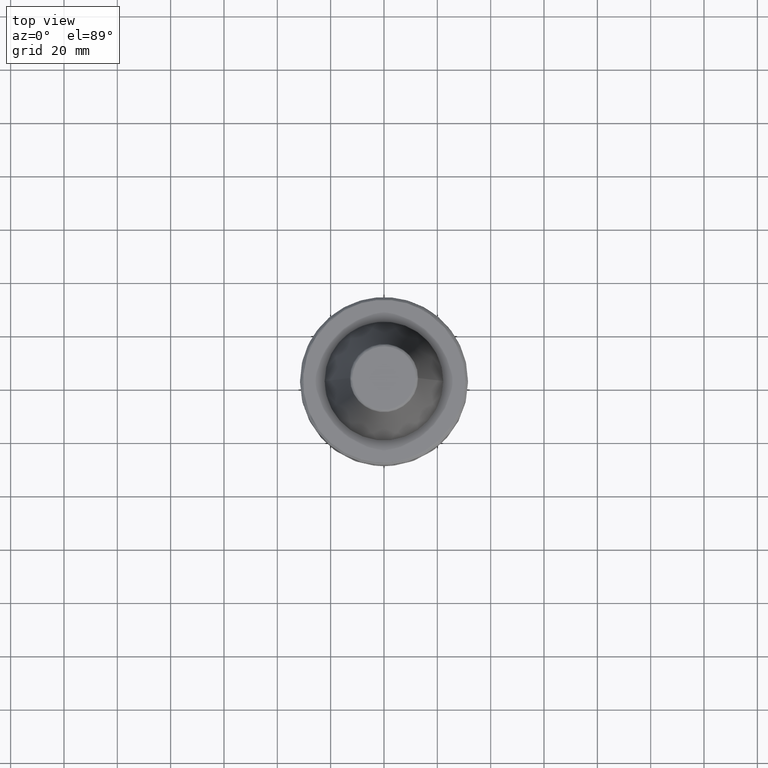
[diagram: clean part render]
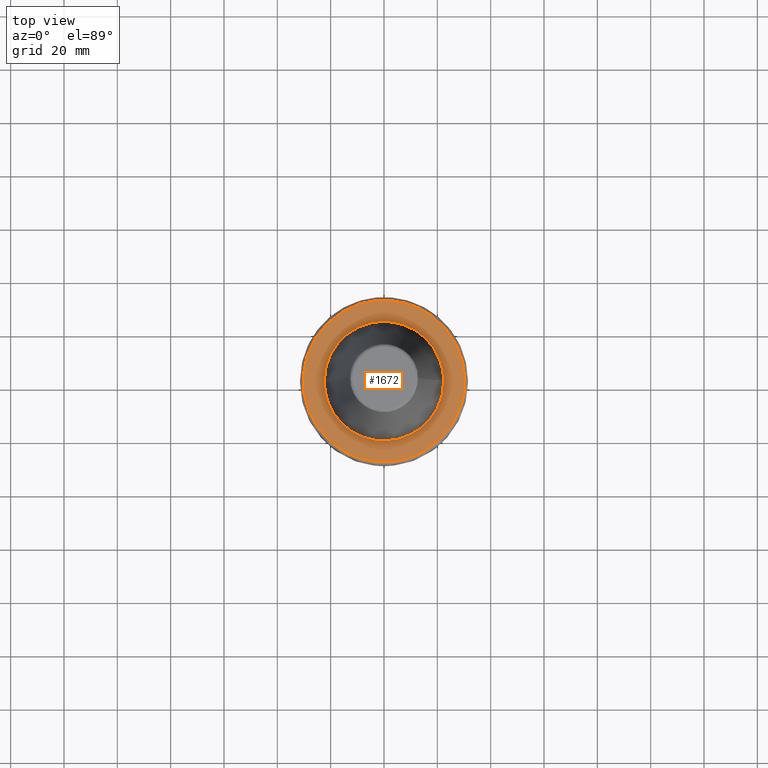
[diagram: same view with one face highlighted and labeled with its STEP entity id]
A machine part, top view. The second image highlights one B-rep face of the part: STEP entity #1672.
In plain terms, the highlighted planar face has unit normal (0, 0, 1).
Its self-contained STEP definition (entity closure, byte-faithful):
#1 = CARTESIAN_POINT ( 'NONE',  ( -6.542405141313800200, 21.44498038501395200, -2.000000000000002700 ) ) ;
#6 = CARTESIAN_POINT ( 'NONE',  ( -7.570037086841433700, 21.09461488815497900, -2.000000000000004000 ) ) ;
#9 = CARTESIAN_POINT ( 'NONE',  ( -8.287526769644985700, 20.81054813477617000, -2.000000000000004000 ) ) ;
#11 = CARTESIAN_POINT ( 'NONE',  ( -8.333249188849523000, 20.79228629974428300, -2.000000000000004000 ) ) ;
#12 = CARTESIAN_POINT ( 'NONE',  ( -8.420970184741060300, 20.75691791007713500, -2.000000000000004000 ) ) ;
#16 = CARTESIAN_POINT ( 'NONE',  ( -8.552344979806328200, 20.70346857996340300, -2.000000000000003600 ) ) ;
#19 = CARTESIAN_POINT ( 'NONE',  ( -8.857439276887731700, 20.57597625707371200, -2.000000000000003100 ) ) ;
#20 = B_SPLINE_CURVE_WITH_KNOTS ( 'NONE', 3,
 ( #2577, #2570, #2538, #2370, #2877, #2780, #2628, #2396, #2759, #2756, #3109, #2662, #2903, #2749, #2746, #2741, #2516, #2430, #2250, #3092, #2689, #2684, #2455, #2894, #2930, #2791, #2320, #2327, #2262, #2290, #2656, #2434, #2905, #2429, #2674, #3078, #2004, #2846, #2843, #2634, #2008, #2013, #2001, #1998, #1993, #1988, #1984, #1977, #1973, #1969, #1967, #1965, #2165, #2176, #2157, #2170, #2172, #3095, #3104, #2390, #2260, #2256, #2203, #2268, #2273, #2237, #2060, #2153, #2266, #2143, #2161, #2070, #2154, #2169, #2148, #2715, #3116, #2490, #3008, #2047, #1916, #3298, #2283, #3303, #2140, #3002, #2200, #2186, #3387, #3169, #2101, #2185, #2031, #3049, #3017, #2054, #3075, #2022, #1940, #2214, #2045, #2225 ),
 .UNSPECIFIED., .F., .F.,
 ( 4, 1, 1, 1, 1, 2, 2, 1, 1, 1, 1, 2, 2, 1, 1, 1, 2, 2, 2, 1, 1, 1, 2, 2, 1, 1, 1, 1, 2, 2, 1, 1, 1, 1, 2, 2, 2, 1, 1, 1, 1, 2, 2, 1, 1, 1, 1, 2, 2, 1, 1, 1, 2, 2, 2, 1, 1, 1, 2, 2, 1, 1, 1, 1, 2, 2, 1, 1, 1, 1, 2, 2, 4 ),
 ( 0.0000000000000000000, 0.03125000000000343500, 0.04687500000000514900, 0.05468750000000598100, 0.05859375000000639800, 0.06054687500000654300, 0.06250000000000668900, 0.09375000000000850700, 0.1093750000000094100, 0.1171875000000099200, 0.1210937500000102100, 0.1230468750000103100, 0.1250000000000103800, 0.1562500000000105200, 0.1718750000000106300, 0.1796875000000106900, 0.1835937500000107400, 0.1875000000000108000, 0.2500000000000113200, 0.2812500000000116600, 0.2968750000000118200, 0.3046875000000118800, 0.3085937500000118800, 0.3125000000000118800, 0.3437500000000122700, 0.3593750000000124300, 0.3671875000000124900, 0.3710937500000125500, 0.3730468750000125500, 0.3750000000000124900, 0.4062500000000127700, 0.4218750000000129300, 0.4296875000000130500, 0.4335937500000131000, 0.4355468750000131000, 0.4375000000000131600, 0.5000000000000141000, 0.5312500000000145400, 0.5468750000000147700, 0.5546875000000148800, 0.5585937500000149900, 0.5605468750000149900, 0.5625000000000149900, 0.5937500000000154300, 0.6093750000000155400, 0.6171875000000156500, 0.6210937500000157700, 0.6230468750000157700, 0.6250000000000157700, 0.6562500000000158800, 0.6718750000000158800, 0.6796875000000159900, 0.6835937500000159900, 0.6875000000000159900, 0.7500000000000154300, 0.7812500000000152100, 0.7968750000000152100, 0.8046875000000151000, 0.8085937500000149900, 0.8125000000000147700, 0.8437500000000135400, 0.8593750000000131000, 0.8671875000000128800, 0.8710937500000126600, 0.8730468750000125500, 0.8750000000000124300, 0.9062500000000094400, 0.9218750000000079900, 0.9296875000000072200, 0.9335937500000068800, 0.9355468750000067700, 0.9375000000000066600, 1.000000000000000000 ),
 .UNSPECIFIED. ) ;
#21 = CARTESIAN_POINT ( 'NONE',  ( -9.461840305433570500, 20.30988273413042900, -2.000000000000003100 ) ) ;
#25 = CARTESIAN_POINT ( 'NONE',  ( -10.64749210005746200, 19.73326017958817500, -2.000000000000002700 ) ) ;
#28 = CARTESIAN_POINT ( 'NONE',  ( -11.62407890264743500, 19.16283711799939800, -2.000000000000003600 ) ) ;
#32 = CARTESIAN_POINT ( 'NONE',  ( -12.33667592247465800, 18.69693224296009900, -2.000000000000003100 ) ) ;
#38 = CARTESIAN_POINT ( 'NONE',  ( -12.41893087788559300, 18.64241366107998100, -2.000000000000003100 ) ) ;
#44 = CARTESIAN_POINT ( 'NONE',  ( -12.57918310161072700, 18.53468170720292500, -2.000000000000002700 ) ) ;
#46 = CARTESIAN_POINT ( 'NONE',  ( -12.81838125886517000, 18.37163761272810800, -2.000000000000003100 ) ) ;
#51 = CARTESIAN_POINT ( 'NONE',  ( -13.36824904412599800, 17.98107824667216500, -2.000000000000003600 ) ) ;
#54 = CARTESIAN_POINT ( 'NONE',  ( -14.43493962131616300, 17.15946693210156900, -2.000000000000003100 ) ) ;
#56 = CARTESIAN_POINT ( 'NONE',  ( -15.29259727033948500, 16.38581280682610600, -2.000000000000003600 ) ) ;
#58 = CARTESIAN_POINT ( 'NONE',  ( -16.93238115505703000, 14.74595008208380700, -2.000000000000003600 ) ) ;
#59 = EDGE_CURVE ( 'NONE', #2916, #3258, #759, .T. ) ;
#60 = CARTESIAN_POINT ( 'NONE',  ( -17.90272195339947800, 13.55154730278627200, -2.000000000000004000 ) ) ;
#66 = CARTESIAN_POINT ( 'NONE',  ( -18.80157304491644200, 12.17662042414224800, -2.000000000000003600 ) ) ;
#68 = CARTESIAN_POINT ( 'NONE',  ( -18.85174391189489300, 12.09879233629797000, -2.000000000000003100 ) ) ;
#72 = CARTESIAN_POINT ( 'NONE',  ( -18.95319761216203200, 11.93926672244238000, -2.000000000000003600 ) ) ;
#75 = CARTESIAN_POINT ( 'NONE',  ( -19.10378740223278600, 11.69915882733261900, -2.000000000000003100 ) ) ;
#78 = CARTESIAN_POINT ( 'NONE',  ( -19.44402825675482700, 11.13317075179192800, -2.000000000000003600 ) ) ;
#81 = CARTESIAN_POINT ( 'NONE',  ( -20.07996867656007100, 9.978249319572150000, -2.000000000000003100 ) ) ;
#83 = CARTESIAN_POINT ( 'NONE',  ( -20.54870396912657100, 8.948981895717979600, -2.000000000000003600 ) ) ;
#84 = EDGE_CURVE ( 'NONE', #355, #3038, #20, .T. ) ;
#88 = CARTESIAN_POINT ( 'NONE',  ( -20.84466756721542100, 8.201342719090201100, -2.000000000000002700 ) ) ;
#90 = CARTESIAN_POINT ( 'NONE',  ( -20.86055755905033800, 8.160831267535956000, -2.000000000000003600 ) ) ;
#92 = CARTESIAN_POINT ( 'NONE',  ( -20.89346074650129700, 8.076228125964370000, -2.000000000000003100 ) ) ;
#96 = CARTESIAN_POINT ( 'NONE',  ( -20.94241909987678300, 7.949210498685419100, -2.000000000000003600 ) ) ;
#99 = CARTESIAN_POINT ( 'NONE',  ( -21.05388026314624400, 7.652045630583450600, -2.000000000000003100 ) ) ;
#101 = EDGE_LOOP ( 'NONE', ( #2121, #2316 ) ) ;
#102 = CARTESIAN_POINT ( 'NONE',  ( -21.26570261125855800, 7.054554276575252900, -2.000000000000003100 ) ) ;
#103 = CARTESIAN_POINT ( 'NONE',  ( -21.64494739377664300, 5.846925097341760100, -2.000000000000003600 ) ) ;
#106 = CARTESIAN_POINT ( 'NONE',  ( -21.89390021243810800, 4.790134707340890900, -2.000000000000003100 ) ) ;
#108 = CARTESIAN_POINT ( 'NONE',  ( -22.03016962878418300, 4.053654801116148400, -2.000000000000003600 ) ) ;
#112 = CARTESIAN_POINT ( 'NONE',  ( -22.03380064768137800, 4.033863417742547400, -2.000000000000004000 ) ) ;
#115 = CARTESIAN_POINT ( 'NONE',  ( 13.55154730279607000, 17.90272195338969400, -2.000000000000004000 ) ) ;
#117 = CARTESIAN_POINT ( 'NONE',  ( -22.04146974406501200, 3.991746215249739800, -2.000000000000004000 ) ) ;
#119 = CARTESIAN_POINT ( 'NONE',  ( -8.750000000000000000, -29.04493313364892500, -2.000000000000001800 ) ) ;
#120 = CARTESIAN_POINT ( 'NONE',  ( -22.05288208987399300, 3.928562165307222000, -2.000000000000003100 ) ) ;
#125 = CARTESIAN_POINT ( 'NONE',  ( -22.07887180539631400, 3.781074992018196300, -2.000000000000003100 ) ) ;
#130 = CARTESIAN_POINT ( 'NONE',  ( -22.12829487097975100, 3.485869751747544800, -2.000000000000003600 ) ) ;
#132 = B_SPLINE_CURVE_WITH_KNOTS ( 'NONE', 3,
 ( #1498, #1507, #1511, #1491, #1489, #1481, #1475, #1474, #1472, #1469, #1463, #1460, #1456, #1454, #1451, #1445, #1443, #1440, #1437, #1435, #1433, #1422, #1421, #1417, #1415, #1410, #1409, #1401, #1396, #1394, #1390, #1388, #1383, #1381, #1376, #1375, #1371, #1366, #1361, #1354, #1349, #1345, #1344, #1340, #1338, #1332, #1331, #1327, #1321, #1316, #1314, #1309, #1304, #1299, #1298, #1292, #1290, #1289, #1286, #1285, #1281, #1278, #1273, #1269, #1267, #1264, #1260, #1256, #1254, #1248, #1244, #1242, #1238, #1235, #1231, #1228, #1226, #1222, #1219, #1215, #1211, #1205, #1204, #1199, #1195, #1192, #1190, #1188, #1185, #1181, #1177, #1175, #1173, #1171, #1166, #1159, #1158, #1155, #1152, #1148, #1147, #1145, #1137, #1136, #1128, #1125 ),
 .UNSPECIFIED., .F., .F.,
 ( 4, 1, 1, 1, 1, 1, 2, 2, 1, 1, 1, 1, 2, 2, 1, 1, 1, 2, 2, 2, 1, 1, 1, 2, 2, 1, 1, 1, 1, 2, 2, 1, 1, 1, 1, 1, 2, 2, 2, 1, 1, 1, 1, 1, 2, 2, 1, 1, 1, 1, 2, 2, 1, 1, 1, 2, 2, 2, 1, 1, 1, 2, 2, 1, 1, 1, 1, 2, 2, 1, 1, 1, 1, 1, 2, 2, 4 ),
 ( 0.0000000000000000000, 0.03124999999999830700, 0.04687499999999746700, 0.05468749999999703700, 0.05859374999999682900, 0.06054687499999673900, 0.06152343749999671800, 0.06249999999999668300, 0.09374999999999561500, 0.1093749999999950700, 0.1171874999999948100, 0.1210937499999947100, 0.1230468749999947000, 0.1249999999999946700, 0.1562499999999943100, 0.1718749999999941200, 0.1796874999999940000, 0.1835937499999940000, 0.1874999999999939800, 0.2499999999999936200, 0.2812499999999933900, 0.2968749999999932800, 0.3046874999999932800, 0.3085937499999932300, 0.3124999999999931700, 0.3437499999999934500, 0.3593749999999936200, 0.3671874999999937300, 0.3710937499999937800, 0.3730468749999937800, 0.3749999999999937800, 0.4062499999999942300, 0.4218749999999944500, 0.4296874999999946200, 0.4335937499999946700, 0.4355468749999946700, 0.4365234374999946700, 0.4374999999999946700, 0.4999999999999951200, 0.5312499999999953400, 0.5468749999999954500, 0.5546874999999954500, 0.5585937499999954500, 0.5605468749999954500, 0.5615234374999954500, 0.5624999999999953400, 0.5937499999999952300, 0.6093749999999952300, 0.6171874999999952300, 0.6210937499999952300, 0.6230468749999952300, 0.6249999999999952300, 0.6562499999999954500, 0.6718749999999955600, 0.6796874999999955600, 0.6835937499999955600, 0.6874999999999955600, 0.7499999999999964500, 0.7812499999999968900, 0.7968749999999970000, 0.8046874999999971100, 0.8085937499999971100, 0.8124999999999971100, 0.8437499999999980000, 0.8593749999999985600, 0.8671874999999987800, 0.8710937499999988900, 0.8730468749999990000, 0.8749999999999991100, 0.9062500000000001100, 0.9218750000000005600, 0.9296875000000007800, 0.9335937500000008900, 0.9355468750000008900, 0.9365234375000008900, 0.9375000000000007800, 1.000000000000000000 ),
 .UNSPECIFIED. ) ;
#134 = CARTESIAN_POINT ( 'NONE',  ( -22.21691554030177700, 2.894535696435848400, -2.000000000000003600 ) ) ;
#138 = CARTESIAN_POINT ( 'NONE',  ( -22.35325503156640500, 1.708173286730883000, -2.000000000000001800 ) ) ;
#191 = CARTESIAN_POINT ( 'NONE',  ( -22.40000000000000200, 2.743208830090071000E-015, -2.000000000000004000 ) ) ;
#196 = CARTESIAN_POINT ( 'NONE',  ( -4.165236834192944200, 22.00934566656719600, -2.000000000000002700 ) ) ;
#197 = CARTESIAN_POINT ( 'NONE',  ( 22.40000000000000200, 0.0000000000000000000, -2.000000000000004000 ) ) ;
#200 = CARTESIAN_POINT ( 'NONE',  ( -22.40000000000000200, 0.6849581371296453700, -2.000000000000003100 ) ) ;
#220 = CARTESIAN_POINT ( 'NONE',  ( 18.69693224296040800, 12.33667592247402900, -2.000000000000003600 ) ) ;
#274 = EDGE_CURVE ( 'NONE', #2916, #3038, #3094, .T. ) ;
#287 = B_SPLINE_CURVE_WITH_KNOTS ( 'NONE', 3,
 ( #191, #200, #138, #134, #130, #125, #120, #117, #112, #108, #106, #103, #102, #99, #96, #92, #90, #88, #83, #81, #78, #75, #72, #68, #66, #60, #58, #56, #54, #51, #46, #44, #38, #32, #28, #25, #21, #19, #16, #12, #11, #9, #6, #1, #2974, #1139, #1202, #2247, #196, #1701, #359, #1385, #933, #1876, #2700, #1251, #1664, #2773, #3290, #3121, #2029, #2365, #2910, #707, #1405, #2665, #928, #1901, #1954, #1134, #2517, #825, #417, #2562, #2098, #422, #2011, #115, #955, #2487, #1724, #1467, #568, #2403, #2625, #220, #1477, #2988, #2914, #382, #793, #1547, #1786, #3281, #1279, #2074, #1650, #770, #884, #2066, #2359, #3393, #1716, #3179, #2479, #2833 ),
 .UNSPECIFIED., .F., .F.,
 ( 4, 1, 1, 1, 1, 1, 2, 2, 1, 1, 1, 1, 2, 2, 1, 1, 1, 2, 2, 2, 1, 1, 1, 2, 2, 1, 1, 1, 1, 2, 2, 1, 1, 1, 1, 1, 2, 2, 2, 1, 1, 1, 1, 1, 2, 2, 1, 1, 1, 1, 2, 2, 1, 1, 1, 2, 2, 2, 1, 1, 1, 2, 2, 1, 1, 1, 1, 2, 2, 1, 1, 1, 1, 1, 2, 2, 4 ),
 ( 0.0000000000000000000, 0.03124999999999852200, 0.04687499999999779300, 0.05468749999999742600, 0.05859374999999723100, 0.06054687499999714100, 0.06152343749999712000, 0.06249999999999710000, 0.09374999999999587800, 0.1093749999999952400, 0.1171874999999949500, 0.1210937499999948000, 0.1230468749999948000, 0.1249999999999947800, 0.1562499999999948400, 0.1718749999999948100, 0.1796874999999948100, 0.1835937499999948100, 0.1874999999999948100, 0.2499999999999948400, 0.2812499999999947800, 0.2968749999999948400, 0.3046874999999948900, 0.3085937499999949500, 0.3124999999999950000, 0.3437499999999955000, 0.3593749999999958400, 0.3671874999999960600, 0.3710937499999961100, 0.3730468749999961700, 0.3749999999999962300, 0.4062499999999981100, 0.4218749999999990000, 0.4296874999999993900, 0.4335937499999996100, 0.4355468749999996700, 0.4365234374999996700, 0.4374999999999996700, 0.5000000000000003300, 0.5312500000000006700, 0.5468750000000007800, 0.5546875000000008900, 0.5585937500000008900, 0.5605468750000008900, 0.5615234375000008900, 0.5625000000000007800, 0.5937500000000008900, 0.6093750000000008900, 0.6171875000000010000, 0.6210937500000008900, 0.6230468750000008900, 0.6250000000000007800, 0.6562500000000002200, 0.6718750000000001100, 0.6796875000000000000, 0.6835937500000000000, 0.6874999999999998900, 0.7499999999999996700, 0.7812499999999995600, 0.7968749999999995600, 0.8046874999999994400, 0.8085937499999995600, 0.8124999999999995600, 0.8437499999999995600, 0.8593749999999994400, 0.8671874999999994400, 0.8710937499999994400, 0.8730468749999994400, 0.8749999999999994400, 0.9062499999999996700, 0.9218749999999996700, 0.9296874999999997800, 0.9335937499999997800, 0.9355468749999997800, 0.9365234374999997800, 0.9374999999999997800, 1.000000000000000000 ),
 .UNSPECIFIED. ) ;
#355 = VERTEX_POINT ( 'NONE', #2345 ) ;
#359 = CARTESIAN_POINT ( 'NONE',  ( -4.097017183233235800, 22.02214534546820000, -2.000000000000003100 ) ) ;
#382 = CARTESIAN_POINT ( 'NONE',  ( 20.57597625707179000, 8.857439276891613000, -2.000000000000003100 ) ) ;
#417 = CARTESIAN_POINT ( 'NONE',  ( 11.13317075180038000, 19.44402825675146900, -2.000000000000002700 ) ) ;
#422 = CARTESIAN_POINT ( 'NONE',  ( 12.09879233629953900, 18.85174391189426800, -2.000000000000003100 ) ) ;
#464 = CARTESIAN_POINT ( 'NONE',  ( 27.62169107613236100, 12.55053787417775800, -2.000000000000003100 ) ) ;
#568 = CARTESIAN_POINT ( 'NONE',  ( 18.37163761272627800, 12.81838125886699100, -2.000000000000002700 ) ) ;
#615 = CARTESIAN_POINT ( 'NONE',  ( 8.750000000000017800, 29.04493313364892500, -2.000000000000001800 ) ) ;
#643 = EDGE_CURVE ( 'NONE', #3153, #3105, #132, .T. ) ;
#650 = CARTESIAN_POINT ( 'NONE',  ( 8.750000000000017800, 29.04493313364892500, -2.000000000000001800 ) ) ;
#653 = CARTESIAN_POINT ( 'NONE',  ( 10.23037642495339300, 28.59895883380329500, -2.000000000000004000 ) ) ;
#663 = DIRECTION ( 'NONE',  ( -1.000000000000000000, 0.0000000000000000000, 0.0000000000000000000 ) ) ;
#667 = CARTESIAN_POINT ( 'NONE',  ( 11.66810107770587900, 28.04312721652442500, -2.000000000000004000 ) ) ;
#672 = CARTESIAN_POINT ( 'NONE',  ( 13.10676998577467800, 27.35663550260254700, -2.000000000000003600 ) ) ;
#675 = CARTESIAN_POINT ( 'NONE',  ( 13.15377117572940700, 27.33407061457361900, -2.000000000000003600 ) ) ;
#679 = CARTESIAN_POINT ( 'NONE',  ( 13.24418078833923600, 27.29038067934625600, -2.000000000000003600 ) ) ;
#681 = CARTESIAN_POINT ( 'NONE',  ( 13.37960760239185700, 27.22452350851656500, -2.000000000000003100 ) ) ;
#689 = CARTESIAN_POINT ( 'NONE',  ( 13.69429026781307500, 27.06860090065998400, -2.000000000000004000 ) ) ;
#693 = CARTESIAN_POINT ( 'NONE',  ( 14.31840266251590800, 26.74773218126430400, -2.000000000000003100 ) ) ;
#698 = CARTESIAN_POINT ( 'NONE',  ( 15.54561570736316300, 26.06990072774281600, -2.000000000000003600 ) ) ;
#705 = CARTESIAN_POINT ( 'NONE',  ( 16.56149246941782500, 25.42702688518705400, -2.000000000000003600 ) ) ;
#707 = CARTESIAN_POINT ( 'NONE',  ( 5.846925097302207800, 21.64494739379230400, -2.000000000000003600 ) ) ;
#713 = CARTESIAN_POINT ( 'NONE',  ( 17.26406233504021500, 24.94243894907139800, -2.000000000000004000 ) ) ;
#719 = CARTESIAN_POINT ( 'NONE',  ( 17.30757464966025000, 24.91226825288028100, -2.000000000000003600 ) ) ;
#726 = CARTESIAN_POINT ( 'NONE',  ( 17.39216495121484800, 24.85328855762307400, -2.000000000000003600 ) ) ;
#733 = CARTESIAN_POINT ( 'NONE',  ( 17.51880075132705300, 24.76451518838386400, -2.000000000000004000 ) ) ;
#738 = CARTESIAN_POINT ( 'NONE',  ( 17.81253671938439700, 24.55525054235186000, -2.000000000000004000 ) ) ;
#741 = CARTESIAN_POINT ( 'NONE',  ( 18.39301839334779500, 24.12821411239251600, -2.000000000000003100 ) ) ;
#753 = CARTESIAN_POINT ( 'NONE',  ( 19.52602069266941200, 23.24011270089255600, -2.000000000000003600 ) ) ;
#755 = CARTESIAN_POINT ( 'NONE',  ( 20.44923229447909600, 22.42054825975317600, -2.000000000000003600 ) ) ;
#759 = B_SPLINE_CURVE_WITH_KNOTS ( 'NONE', 3,
 ( #2484, #2449, #2529, #2769, #2547, #2875, #2082, #2080, #2322, #2873, #2693, #2545, #2470, #2706, #2084, #2216, #2205, #2880, #3135, #3036, #2673, #3069, #3064, #2379, #2377, #2608, #2786, #2671, #2440, #2513, #2699, #2468, #2495, #2520, #2800, #3317, #2793, #2760, #2864, #2552, #2782, #2797, #2729, #2507, #2522, #3053, #3373, #3209, #2678, #2445, #2391, #2913 ),
 .UNSPECIFIED., .F., .F.,
 ( 4, 1, 1, 1, 1, 2, 2, 1, 1, 1, 1, 2, 2, 1, 1, 1, 2, 2, 2, 1, 1, 1, 2, 2, 1, 1, 1, 1, 2, 2, 1, 1, 1, 1, 2, 2, 4 ),
 ( 0.0000000000000000000, 0.06249999999999766900, 0.09374999999999651700, 0.1093749999999958900, 0.1171874999999955200, 0.1210937499999953900, 0.1249999999999952500, 0.1874999999999929200, 0.2187499999999917600, 0.2343749999999912300, 0.2421874999999911500, 0.2460937499999911500, 0.2499999999999911700, 0.3124999999999919000, 0.3437499999999922300, 0.3593749999999923900, 0.3671874999999923900, 0.3749999999999923900, 0.4999999999999940000, 0.5624999999999947800, 0.5937499999999952300, 0.6093749999999954500, 0.6171874999999955600, 0.6249999999999955600, 0.6874999999999963400, 0.7187499999999966700, 0.7343749999999968900, 0.7421874999999971100, 0.7460937499999971100, 0.7499999999999972200, 0.8124999999999977800, 0.8437499999999980000, 0.8593749999999982200, 0.8671874999999984500, 0.8710937499999984500, 0.8749999999999985600, 1.000000000000000000 ),
 .UNSPECIFIED. ) ;
#766 = CARTESIAN_POINT ( 'NONE',  ( 21.11767438274620900, 21.77670759897181100, -2.000000000000003600 ) ) ;
#768 = CARTESIAN_POINT ( 'NONE',  ( 21.19363721147378100, 21.70279524882227700, -2.000000000000003600 ) ) ;
#770 = CARTESIAN_POINT ( 'NONE',  ( 21.90294337551176800, 4.699014149697682700, -2.000000000000003600 ) ) ;
#778 = CARTESIAN_POINT ( 'NONE',  ( 21.34265533147623000, 21.55628054256800400, -2.000000000000003600 ) ) ;
#780 = CARTESIAN_POINT ( 'NONE',  ( 21.56496645961404100, 21.33544397827982700, -2.000000000000003600 ) ) ;
#784 = CARTESIAN_POINT ( 'NONE',  ( 22.07518006220772500, 20.81270712725983400, -2.000000000000003100 ) ) ;
#787 = CARTESIAN_POINT ( 'NONE',  ( 23.06155781515033400, 19.73742728782961100, -2.000000000000003100 ) ) ;
#791 = CARTESIAN_POINT ( 'NONE',  ( 23.84865397096722400, 18.76466261850616100, -2.000000000000003100 ) ) ;
#793 = CARTESIAN_POINT ( 'NONE',  ( 20.70346857996236900, 8.552344979808417200, -2.000000000000003600 ) ) ;
#802 = CARTESIAN_POINT ( 'NONE',  ( 25.34501896318434400, 16.75100496582444300, -2.000000000000003600 ) ) ;
#813 = CARTESIAN_POINT ( 'NONE',  ( 26.22615713670996500, 15.33487521298006900, -2.000000000000003100 ) ) ;
#816 = CARTESIAN_POINT ( 'NONE',  ( 27.03730075263921500, 13.75375675070443600, -2.000000000000003100 ) ) ;
#823 = CARTESIAN_POINT ( 'NONE',  ( 27.08328172268829400, 13.66298391431109000, -2.000000000000003100 ) ) ;
#825 = CARTESIAN_POINT ( 'NONE',  ( 9.978249319583429900, 20.07996867655561200, -2.000000000000003600 ) ) ;
#829 = CARTESIAN_POINT ( 'NONE',  ( 28.62489804494179800, 10.07309684654403800, -2.000000000000002700 ) ) ;
#833 = AXIS2_PLACEMENT_3D ( 'NONE', #3066, #3059, #3054 ) ;
#842 = CARTESIAN_POINT ( 'NONE',  ( 28.89325826133673700, 9.238661841716824700, -2.000000000000003100 ) ) ;
#855 = CARTESIAN_POINT ( 'NONE',  ( 28.90810607769584100, 9.192089653153702900, -2.000000000000003100 ) ) ;
#859 = CARTESIAN_POINT ( 'NONE',  ( 28.93837664608356500, 9.096348332901808200, -2.000000000000004000 ) ) ;
#869 = CARTESIAN_POINT ( 'NONE',  ( 28.98341935561171600, 8.952651632883856800, -2.000000000000003600 ) ) ;
#872 = CARTESIAN_POINT ( 'NONE',  ( 29.08597700980332900, 8.616766295361236100, -2.000000000000002700 ) ) ;
#876 = CARTESIAN_POINT ( 'NONE',  ( 29.28092431269031000, 7.942623470392991400, -2.000000000000002700 ) ) ;
#880 = CARTESIAN_POINT ( 'NONE',  ( 29.63014689647924300, 6.584849220764529500, -2.000000000000002700 ) ) ;
#883 = CARTESIAN_POINT ( 'NONE',  ( 29.85975707346683400, 5.404776550182460500, -2.000000000000003100 ) ) ;
#884 = CARTESIAN_POINT ( 'NONE',  ( 21.96633915484310200, 4.388029393852119300, -2.000000000000004000 ) ) ;
#887 = CARTESIAN_POINT ( 'NONE',  ( 29.98947264532133500, 4.561210494483800600, -2.000000000000003600 ) ) ;
#890 = CARTESIAN_POINT ( 'NONE',  ( 29.99641392456410600, 4.515315216715525700, -2.000000000000003600 ) ) ;
#891 = CARTESIAN_POINT ( 'NONE',  ( 30.01064132037407700, 4.419772587682445900, -2.000000000000003600 ) ) ;
#898 = CARTESIAN_POINT ( 'NONE',  ( 30.03163820290006200, 4.276432825556172500, -2.000000000000003600 ) ) ;
#904 = CARTESIAN_POINT ( 'NONE',  ( 30.07822145047141000, 3.941792650558323600, -2.000000000000003600 ) ) ;
#917 = CARTESIAN_POINT ( 'NONE',  ( 30.16175003232346100, 3.271789380416418000, -2.000000000000003100 ) ) ;
#919 = CARTESIAN_POINT ( 'NONE',  ( 30.29025554286507200, 1.928891159547803300, -2.000000000000003100 ) ) ;
#928 = CARTESIAN_POINT ( 'NONE',  ( 7.949210498676145600, 20.94241909988045300, -2.000000000000003100 ) ) ;
#933 = CARTESIAN_POINT ( 'NONE',  ( -1.369741005846161000, 22.39996757044212600, -2.000000000000003100 ) ) ;
#937 = CARTESIAN_POINT ( 'NONE',  ( 30.33431457505076500, 0.0000000000000000000, -2.000000000000004000 ) ) ;
#939 = CARTESIAN_POINT ( 'NONE',  ( 30.33431457505075500, 0.7728783749436051200, -2.000000000000002700 ) ) ;
#955 = CARTESIAN_POINT ( 'NONE',  ( 14.74595008208855300, 16.93238115505229000, -2.000000000000004000 ) ) ;
#1095 = DIRECTION ( 'NONE',  ( -0.0000000000000000000, -0.0000000000000000000, -1.000000000000000000 ) ) ;
#1125 = CARTESIAN_POINT ( 'NONE',  ( -22.40000000000000200, 2.743208830090071000E-015, -2.000000000000004000 ) ) ;
#1128 = CARTESIAN_POINT ( 'NONE',  ( -22.40000000000000900, -1.370271814696847100, -2.000000000000003600 ) ) ;
#1134 = CARTESIAN_POINT ( 'NONE',  ( 8.201342719089797800, 20.84466756721559100, -2.000000000000003600 ) ) ;
#1136 = CARTESIAN_POINT ( 'NONE',  ( -22.27534675084375900, -2.728929272707512100, -2.000000000000003100 ) ) ;
#1137 = CARTESIAN_POINT ( 'NONE',  ( -22.02214483849512700, -4.097019922490240200, -2.000000000000003100 ) ) ;
#1139 = CARTESIAN_POINT ( 'NONE',  ( -4.699014149700976100, 21.90294337551010500, -2.000000000000003100 ) ) ;
#1145 = CARTESIAN_POINT ( 'NONE',  ( -22.01774244189266100, -4.120618964790804900, -2.000000000000002700 ) ) ;
#1147 = CARTESIAN_POINT ( 'NONE',  ( -22.00934566656719600, -4.165236834193101400, -2.000000000000003600 ) ) ;
#1148 = CARTESIAN_POINT ( 'NONE',  ( -21.99665153889210600, -4.232134916940072600, -2.000000000000003100 ) ) ;
#1152 = CARTESIAN_POINT ( 'NONE',  ( -21.96633915484217800, -4.388029393854397500, -2.000000000000002700 ) ) ;
#1155 = CARTESIAN_POINT ( 'NONE',  ( -21.90294337551009100, -4.699014149701936200, -2.000000000000003100 ) ) ;
#1158 = CARTESIAN_POINT ( 'NONE',  ( -21.76506777191681500, -5.317766869472553300, -2.000000000000003100 ) ) ;
#1159 = CARTESIAN_POINT ( 'NONE',  ( -21.44498038501394900, -6.542405141315978100, -2.000000000000003600 ) ) ;
#1166 = CARTESIAN_POINT ( 'NONE',  ( -21.09461488815495800, -7.570037086842672700, -2.000000000000002700 ) ) ;
#1171 = CARTESIAN_POINT ( 'NONE',  ( -20.81054813477616200, -8.287526769644909300, -2.000000000000003100 ) ) ;
#1173 = CARTESIAN_POINT ( 'NONE',  ( -20.79228629974413100, -8.333249188849761100, -2.000000000000003600 ) ) ;
#1175 = CARTESIAN_POINT ( 'NONE',  ( -20.75691791007682600, -8.420970184741529300, -2.000000000000003600 ) ) ;
#1177 = CARTESIAN_POINT ( 'NONE',  ( -20.70346857996287000, -8.552344979807132900, -2.000000000000003600 ) ) ;
#1181 = CARTESIAN_POINT ( 'NONE',  ( -20.57597625707273900, -8.857439276889227400, -2.000000000000003100 ) ) ;
#1185 = CARTESIAN_POINT ( 'NONE',  ( -20.30988273412874900, -9.461840305436135500, -2.000000000000003100 ) ) ;
#1188 = CARTESIAN_POINT ( 'NONE',  ( -19.73326017958595500, -10.64749210006087500, -2.000000000000003600 ) ) ;
#1190 = CARTESIAN_POINT ( 'NONE',  ( -19.16283711799812700, -11.62407890264938200, -2.000000000000003100 ) ) ;
#1192 = CARTESIAN_POINT ( 'NONE',  ( -18.69693224296026200, -12.33667592247441500, -2.000000000000004000 ) ) ;
#1195 = CARTESIAN_POINT ( 'NONE',  ( -18.64241366107998100, -12.41893087788559300, -2.000000000000003100 ) ) ;
#1198 = ORIENTED_EDGE ( 'NONE', *, *, #84, .T. ) ;
#1199 = CARTESIAN_POINT ( 'NONE',  ( -18.53468170720293200, -12.57918310161073300, -2.000000000000003600 ) ) ;
#1202 = CARTESIAN_POINT ( 'NONE',  ( -4.388029393853883200, 21.96633915484218500, -2.000000000000003100 ) ) ;
#1204 = CARTESIAN_POINT ( 'NONE',  ( -18.37163761272810400, -12.81838125886517500, -2.000000000000003600 ) ) ;
#1205 = CARTESIAN_POINT ( 'NONE',  ( -17.98107824667216200, -13.36824904412599200, -2.000000000000002700 ) ) ;
#1211 = CARTESIAN_POINT ( 'NONE',  ( -17.15946693210156900, -14.43493962131615600, -2.000000000000002700 ) ) ;
#1215 = CARTESIAN_POINT ( 'NONE',  ( -16.38581280682610600, -15.29259727033947900, -2.000000000000003100 ) ) ;
#1219 = CARTESIAN_POINT ( 'NONE',  ( -14.74595008208380300, -16.93238115505702600, -2.000000000000003600 ) ) ;
#1222 = CARTESIAN_POINT ( 'NONE',  ( -13.55154730278626800, -17.90272195339947800, -2.000000000000002700 ) ) ;
#1226 = CARTESIAN_POINT ( 'NONE',  ( -12.17662042414225000, -18.80157304491643800, -2.000000000000003100 ) ) ;
#1228 = CARTESIAN_POINT ( 'NONE',  ( -12.09879233629750000, -18.85174391189519100, -2.000000000000002700 ) ) ;
#1231 = CARTESIAN_POINT ( 'NONE',  ( -11.93926672244148300, -18.95319761216261900, -2.000000000000003100 ) ) ;
#1235 = CARTESIAN_POINT ( 'NONE',  ( -11.69915882733113400, -19.10378740223376300, -2.000000000000003100 ) ) ;
#1236 = EDGE_CURVE ( 'NONE', #3105, #3153, #287, .T. ) ;
#1238 = CARTESIAN_POINT ( 'NONE',  ( -11.13317075178936800, -19.44402825675650000, -2.000000000000002700 ) ) ;
#1242 = CARTESIAN_POINT ( 'NONE',  ( -9.978249319568741200, -20.07996867656229200, -2.000000000000002700 ) ) ;
#1244 = CARTESIAN_POINT ( 'NONE',  ( -8.948981895716034500, -20.54870396912783900, -2.000000000000003100 ) ) ;
#1248 = CARTESIAN_POINT ( 'NONE',  ( -8.201342719090339600, -20.84466756721535300, -2.000000000000003100 ) ) ;
#1251 = CARTESIAN_POINT ( 'NONE',  ( 2.894420676539724500, 22.21693682219912300, -2.000000000000003100 ) ) ;
#1254 = CARTESIAN_POINT ( 'NONE',  ( -8.160831267535678900, -20.86055755905040200, -2.000000000000004000 ) ) ;
#1256 = CARTESIAN_POINT ( 'NONE',  ( -8.076228125963830000, -20.89346074650140400, -2.000000000000003100 ) ) ;
#1260 = CARTESIAN_POINT ( 'NONE',  ( -7.949210498684481200, -20.94241909987694300, -2.000000000000003100 ) ) ;
#1264 = CARTESIAN_POINT ( 'NONE',  ( -7.652045630581701700, -21.05388026314657400, -2.000000000000003100 ) ) ;
#1267 = CARTESIAN_POINT ( 'NONE',  ( -7.054554276572245500, -21.26570261125911200, -2.000000000000003100 ) ) ;
#1269 = CARTESIAN_POINT ( 'NONE',  ( -5.846925097337738500, -21.64494739377738600, -2.000000000000003600 ) ) ;
#1273 = CARTESIAN_POINT ( 'NONE',  ( -4.790134707338593100, -21.89390021243853800, -2.000000000000003600 ) ) ;
#1278 = CARTESIAN_POINT ( 'NONE',  ( -4.053654801116220300, -22.03016962878416200, -2.000000000000002700 ) ) ;
#1279 = CARTESIAN_POINT ( 'NONE',  ( 21.09461488815716400, 7.570037086837112700, -2.000000000000003100 ) ) ;
#1281 = CARTESIAN_POINT ( 'NONE',  ( -4.033857983396283800, -22.03380165318768000, -2.000000000000002200 ) ) ;
#1285 = CARTESIAN_POINT ( 'NONE',  ( -3.991735474927596200, -22.04147173132551900, -2.000000000000003100 ) ) ;
#1286 = CARTESIAN_POINT ( 'NONE',  ( -3.928543594391641600, -22.05288552601366800, -2.000000000000003100 ) ) ;
#1289 = CARTESIAN_POINT ( 'NONE',  ( -3.781039048310619300, -22.07887845598924400, -2.000000000000003100 ) ) ;
#1290 = CARTESIAN_POINT ( 'NONE',  ( -3.485802656826737500, -22.12830728541987600, -2.000000000000003600 ) ) ;
#1292 = CARTESIAN_POINT ( 'NONE',  ( -2.894420676571603400, -22.21693682219912000, -2.000000000000003100 ) ) ;
#1298 = CARTESIAN_POINT ( 'NONE',  ( -1.708019926911898700, -22.35328340742955800, -2.000000000000003100 ) ) ;
#1299 = CARTESIAN_POINT ( 'NONE',  ( -0.6848705029473707300, -22.40001621477894700, -2.000000000000003600 ) ) ;
#1304 = CARTESIAN_POINT ( 'NONE',  ( 1.369741005894731500, -22.39996757044213300, -2.000000000000004000 ) ) ;
#1309 = CARTESIAN_POINT ( 'NONE',  ( 2.729104585153226300, -22.27531430456798100, -2.000000000000004000 ) ) ;
#1314 = CARTESIAN_POINT ( 'NONE',  ( 4.097017183233274000, -22.02214534546820000, -2.000000000000003100 ) ) ;
#1316 = CARTESIAN_POINT ( 'NONE',  ( 4.120618964789227500, -22.01774244189295300, -2.000000000000003100 ) ) ;
#1321 = CARTESIAN_POINT ( 'NONE',  ( 4.165236834189979500, -22.00934566656776800, -2.000000000000002700 ) ) ;
#1327 = CARTESIAN_POINT ( 'NONE',  ( 4.232134916934676900, -21.99665153889310400, -2.000000000000004000 ) ) ;
#1331 = CARTESIAN_POINT ( 'NONE',  ( 4.388029393843959600, -21.96633915484412500, -2.000000000000003100 ) ) ;
#1332 = CARTESIAN_POINT ( 'NONE',  ( 4.699014149682451300, -21.90294337551369700, -2.000000000000003100 ) ) ;
#1338 = CARTESIAN_POINT ( 'NONE',  ( 5.317766869439148000, -21.76506777192300000, -2.000000000000003600 ) ) ;
#1340 = CARTESIAN_POINT ( 'NONE',  ( 6.542405141271450100, -21.44498038502218400, -2.000000000000003600 ) ) ;
#1344 = CARTESIAN_POINT ( 'NONE',  ( 7.570037086817232600, -21.09461488815966100, -2.000000000000003100 ) ) ;
#1345 = CARTESIAN_POINT ( 'NONE',  ( 8.287526769646500900, -20.81054813477586100, -2.000000000000003100 ) ) ;
#1349 = CARTESIAN_POINT ( 'NONE',  ( 8.333249188847103600, -20.79228629974586400, -2.000000000000004000 ) ) ;
#1354 = CARTESIAN_POINT ( 'NONE',  ( 8.420970184736324500, -20.75691791008021900, -2.000000000000003100 ) ) ;
#1361 = CARTESIAN_POINT ( 'NONE',  ( 8.552344979798249400, -20.70346857996867500, -2.000000000000003100 ) ) ;
#1366 = CARTESIAN_POINT ( 'NONE',  ( 8.857439276872638000, -20.57597625708357100, -2.000000000000003100 ) ) ;
#1371 = CARTESIAN_POINT ( 'NONE',  ( 9.461840305407692500, -20.30988273414734400, -2.000000000000003600 ) ) ;
#1375 = CARTESIAN_POINT ( 'NONE',  ( 10.64749210002296600, -19.73326017961073500, -2.000000000000003600 ) ) ;
#1376 = CARTESIAN_POINT ( 'NONE',  ( 11.62407890262771700, -19.16283711801229100, -2.000000000000003600 ) ) ;
#1381 = CARTESIAN_POINT ( 'NONE',  ( 12.33667592247712400, -18.69693224295848900, -2.000000000000004000 ) ) ;
#1383 = CARTESIAN_POINT ( 'NONE',  ( 12.41893087788559300, -18.64241366107998800, -2.000000000000004000 ) ) ;
#1385 = CARTESIAN_POINT ( 'NONE',  ( -2.729104585155485800, 22.27531430456798100, -2.000000000000003600 ) ) ;
#1388 = CARTESIAN_POINT ( 'NONE',  ( 12.57918310161073600, -18.53468170720293500, -2.000000000000004000 ) ) ;
#1390 = CARTESIAN_POINT ( 'NONE',  ( 12.81838125886517200, -18.37163761272811200, -2.000000000000003100 ) ) ;
#1394 = CARTESIAN_POINT ( 'NONE',  ( 13.36824904412599600, -17.98107824667216900, -2.000000000000003600 ) ) ;
#1396 = CARTESIAN_POINT ( 'NONE',  ( 14.43493962131616300, -17.15946693210157300, -2.000000000000003600 ) ) ;
#1401 = CARTESIAN_POINT ( 'NONE',  ( 15.29259727033948300, -16.38581280682610200, -2.000000000000002700 ) ) ;
#1405 = CARTESIAN_POINT ( 'NONE',  ( 7.054554276545589500, 21.26570261127030300, -2.000000000000003600 ) ) ;
#1409 = CARTESIAN_POINT ( 'NONE',  ( 16.93238115505702600, -14.74595008208380900, -2.000000000000003600 ) ) ;
#1410 = CARTESIAN_POINT ( 'NONE',  ( 17.90272195339948200, -13.55154730278627400, -2.000000000000003100 ) ) ;
#1415 = CARTESIAN_POINT ( 'NONE',  ( 18.80157304491643800, -12.17662042414225000, -2.000000000000003100 ) ) ;
#1417 = CARTESIAN_POINT ( 'NONE',  ( 18.85174391189458000, -12.09879233629844100, -2.000000000000003100 ) ) ;
#1421 = CARTESIAN_POINT ( 'NONE',  ( 18.95319761216144600, -11.93926672244328400, -2.000000000000003600 ) ) ;
#1422 = CARTESIAN_POINT ( 'NONE',  ( 19.10378740223180900, -11.69915882733412200, -2.000000000000004000 ) ) ;
#1433 = CARTESIAN_POINT ( 'NONE',  ( 19.44402825675313900, -11.13317075179449800, -2.000000000000003100 ) ) ;
#1435 = CARTESIAN_POINT ( 'NONE',  ( 20.07996867655782900, -9.978249319575574800, -2.000000000000003100 ) ) ;
#1437 = CARTESIAN_POINT ( 'NONE',  ( 20.54870396912528100, -8.948981895719939000, -2.000000000000002700 ) ) ;
#1440 = CARTESIAN_POINT ( 'NONE',  ( 20.84466756721551300, -8.201342719090087400, -2.000000000000003600 ) ) ;
#1443 = CARTESIAN_POINT ( 'NONE',  ( 20.86055755905028900, -8.160831267536240200, -2.000000000000003600 ) ) ;
#1445 = CARTESIAN_POINT ( 'NONE',  ( 20.89346074650119800, -8.076228125964927800, -2.000000000000003600 ) ) ;
#1451 = CARTESIAN_POINT ( 'NONE',  ( 20.94241909987660900, -7.949210498686361400, -2.000000000000003600 ) ) ;
#1454 = CARTESIAN_POINT ( 'NONE',  ( 21.05388026314592100, -7.652045630585210000, -2.000000000000003600 ) ) ;
#1456 = CARTESIAN_POINT ( 'NONE',  ( 21.26570261125799600, -7.054554276578255000, -2.000000000000002700 ) ) ;
#1460 = CARTESIAN_POINT ( 'NONE',  ( 21.64494739377589000, -5.846925097345758700, -2.000000000000003100 ) ) ;
#1463 = CARTESIAN_POINT ( 'NONE',  ( 21.89390021243768600, -4.790134707343173500, -2.000000000000003100 ) ) ;
#1467 = CARTESIAN_POINT ( 'NONE',  ( 17.98107824666903900, 13.36824904412911300, -2.000000000000003100 ) ) ;
#1469 = CARTESIAN_POINT ( 'NONE',  ( 22.03016962878419700, -4.053654801116075600, -2.000000000000003600 ) ) ;
#1472 = CARTESIAN_POINT ( 'NONE',  ( 22.03380064768137100, -4.033863417742547400, -2.000000000000003600 ) ) ;
#1474 = CARTESIAN_POINT ( 'NONE',  ( 22.04146974406501200, -3.991746215249736300, -2.000000000000002700 ) ) ;
#1475 = CARTESIAN_POINT ( 'NONE',  ( 22.05288208987399300, -3.928562165307222900, -2.000000000000003100 ) ) ;
#1477 = CARTESIAN_POINT ( 'NONE',  ( 19.16283711799689400, 11.62407890265251000, -2.000000000000003600 ) ) ;
#1481 = CARTESIAN_POINT ( 'NONE',  ( 22.07887180539631800, -3.781074992018193600, -2.000000000000003100 ) ) ;
#1489 = CARTESIAN_POINT ( 'NONE',  ( 22.12829487097975100, -3.485869751747542500, -2.000000000000003600 ) ) ;
#1491 = CARTESIAN_POINT ( 'NONE',  ( 22.21691554030177000, -2.894535696435845700, -2.000000000000003600 ) ) ;
#1498 = CARTESIAN_POINT ( 'NONE',  ( 22.40000000000000200, 0.0000000000000000000, -2.000000000000004000 ) ) ;
#1507 = CARTESIAN_POINT ( 'NONE',  ( 22.40000000000000600, -0.6849581371296427100, -2.000000000000003600 ) ) ;
#1511 = CARTESIAN_POINT ( 'NONE',  ( 22.35325503156641600, -1.708173286730881200, -2.000000000000002700 ) ) ;
#1547 = CARTESIAN_POINT ( 'NONE',  ( 20.75691791007652400, 8.420970184742280700, -2.000000000000003600 ) ) ;
#1598 = CARTESIAN_POINT ( 'NONE',  ( 30.33431457505076500, 0.0000000000000000000, -2.000000000000004000 ) ) ;
#1645 = AXIS2_PLACEMENT_3D ( 'NONE', #2466, #1095, #663 ) ;
#1650 = CARTESIAN_POINT ( 'NONE',  ( 21.76506777191970300, 5.317766869465260400, -2.000000000000003600 ) ) ;
#1664 = CARTESIAN_POINT ( 'NONE',  ( 3.485802656808132400, 22.12830728541988300, -2.000000000000003100 ) ) ;
#1672 = ADVANCED_FACE ( 'NONE', ( #3340, #3278 ), #3103, .T. ) ;
#1701 = CARTESIAN_POINT ( 'NONE',  ( -4.120618964790725000, 22.01774244189266800, -2.000000000000003100 ) ) ;
#1702 = ORIENTED_EDGE ( 'NONE', *, *, #274, .F. ) ;
#1704 = CARTESIAN_POINT ( 'NONE',  ( 28.19948156096160100, 11.23198697429146600, -2.000000000000003100 ) ) ;
#1716 = CARTESIAN_POINT ( 'NONE',  ( 22.02214483849513400, 4.097019922490423100, -2.000000000000003600 ) ) ;
#1724 = CARTESIAN_POINT ( 'NONE',  ( 17.15946693209742000, 14.43493962132031400, -2.000000000000003100 ) ) ;
#1786 = CARTESIAN_POINT ( 'NONE',  ( 20.79228629974398100, 8.333249188850146500, -2.000000000000003600 ) ) ;
#1831 = ORIENTED_EDGE ( 'NONE', *, *, #2600, .F. ) ;
#1876 = CARTESIAN_POINT ( 'NONE',  ( 0.6848705029230751600, 22.40001621477894400, -2.000000000000003600 ) ) ;
#1901 = CARTESIAN_POINT ( 'NONE',  ( 8.076228125958939700, 20.89346074650345700, -2.000000000000002700 ) ) ;
#1916 = CARTESIAN_POINT ( 'NONE',  ( -21.34265533146845700, -21.55628054257429900, -2.000000000000003100 ) ) ;
#1925 = DIRECTION ( 'NONE',  ( -0.0000000000000000000, -0.0000000000000000000, -1.000000000000000000 ) ) ;
#1930 = CARTESIAN_POINT ( 'NONE',  ( 0.0000000000000000000, 0.0000000000000000000, -2.000000000000001800 ) ) ;
#1940 = CARTESIAN_POINT ( 'NONE',  ( -13.10676998577466500, -27.35663550260255800, -2.000000000000003600 ) ) ;
#1954 = CARTESIAN_POINT ( 'NONE',  ( 8.160831267533167100, 20.86055755905144700, -2.000000000000003600 ) ) ;
#1965 = CARTESIAN_POINT ( 'NONE',  ( -30.33432786622616800, -0.7727919397807646600, -2.000000000000003100 ) ) ;
#1967 = CARTESIAN_POINT ( 'NONE',  ( -30.33428799269996600, 1.545583879561637700, -2.000000000000004000 ) ) ;
#1969 = CARTESIAN_POINT ( 'NONE',  ( -30.21679722845308500, 3.083211169343242900, -2.000000000000004000 ) ) ;
#1973 = CARTESIAN_POINT ( 'NONE',  ( -29.97449997659994400, 4.658570178979136500, -2.000000000000003600 ) ) ;
#1976 = CARTESIAN_POINT ( 'NONE',  ( 27.17552217927330800, 13.47860611700420600, -2.000000000000004000 ) ) ;
#1977 = CARTESIAN_POINT ( 'NONE',  ( -29.96645099098634900, 4.710087845340273000, -2.000000000000004000 ) ) ;
#1984 = CARTESIAN_POINT ( 'NONE',  ( -29.95069697961036700, 4.809256991836448100, -2.000000000000003600 ) ) ;
#1988 = CARTESIAN_POINT ( 'NONE',  ( -29.92670327774924000, 4.957924039908610900, -2.000000000000003600 ) ) ;
#1993 = CARTESIAN_POINT ( 'NONE',  ( -29.86817917982656900, 5.304207117038895800, -2.000000000000003100 ) ) ;
#1998 = CARTESIAN_POINT ( 'NONE',  ( -29.74097580966105200, 5.994346464480465800, -2.000000000000003100 ) ) ;
#2001 = CARTESIAN_POINT ( 'NONE',  ( -29.44594837204929800, 7.364917932087600100, -2.000000000000003600 ) ) ;
#2004 = CARTESIAN_POINT ( 'NONE',  ( -28.64957783130574100, 9.972386056758317400, -2.000000000000002700 ) ) ;
#2008 = CARTESIAN_POINT ( 'NONE',  ( -28.86209987475891500, 9.335539612456720700, -2.000000000000003100 ) ) ;
#2011 = CARTESIAN_POINT ( 'NONE',  ( 12.17662042414164200, 18.80157304491704900, -2.000000000000002700 ) ) ;
#2013 = CARTESIAN_POINT ( 'NONE',  ( -29.12343223018656600, 8.523052514706240100, -2.000000000000002200 ) ) ;
#2022 = CARTESIAN_POINT ( 'NONE',  ( -13.15377117573201500, -27.33407061457237200, -2.000000000000003600 ) ) ;
#2029 = CARTESIAN_POINT ( 'NONE',  ( 4.033857983394772100, 22.03380165318769100, -2.000000000000003600 ) ) ;
#2031 = CARTESIAN_POINT ( 'NONE',  ( -15.54561570740044600, -26.06990072772503500, -2.000000000000003600 ) ) ;
#2045 = CARTESIAN_POINT ( 'NONE',  ( -10.23037642495338100, -28.59895883380331200, -2.000000000000004000 ) ) ;
#2047 = CARTESIAN_POINT ( 'NONE',  ( -21.56496645960112300, -21.33544397829025000, -2.000000000000003100 ) ) ;
#2054 = CARTESIAN_POINT ( 'NONE',  ( -13.37960760240058600, -27.22452350851239800, -2.000000000000002700 ) ) ;
#2060 = CARTESIAN_POINT ( 'NONE',  ( -28.89325826133665800, -9.238661841717021900, -2.000000000000002700 ) ) ;
#2066 = CARTESIAN_POINT ( 'NONE',  ( 21.99665153889257100, 4.232134916938890400, -2.000000000000002200 ) ) ;
#2070 = CARTESIAN_POINT ( 'NONE',  ( -27.17552217927385200, -13.47860611700252400, -2.000000000000003100 ) ) ;
#2074 = CARTESIAN_POINT ( 'NONE',  ( 21.44498038501778600, 6.542405141306249800, -2.000000000000002700 ) ) ;
#2080 = CARTESIAN_POINT ( 'NONE',  ( 12.97592036941624000, -27.41894254719940700, -2.000000000000003600 ) ) ;
#2082 = CARTESIAN_POINT ( 'NONE',  ( 12.88854277095808400, -27.46012467976236600, -2.000000000000003100 ) ) ;
#2084 = CARTESIAN_POINT ( 'NONE',  ( 17.05704025263193200, -25.08446877500502500, -2.000000000000003100 ) ) ;
#2098 = CARTESIAN_POINT ( 'NONE',  ( 11.93926672244535900, 18.95319761216085700, -2.000000000000002700 ) ) ;
#2101 = CARTESIAN_POINT ( 'NONE',  ( -17.26406233503887900, -24.94243894907205200, -2.000000000000003600 ) ) ;
#2113 = ORIENTED_EDGE ( 'NONE', *, *, #2375, .T. ) ;
#2121 = ORIENTED_EDGE ( 'NONE', *, *, #1236, .T. ) ;
#2140 = CARTESIAN_POINT ( 'NONE',  ( -19.52602069271579300, -23.24011270085242500, -2.000000000000003100 ) ) ;
#2143 = CARTESIAN_POINT ( 'NONE',  ( -27.62169107613389600, -12.55053787417302400, -2.000000000000003100 ) ) ;
#2148 = CARTESIAN_POINT ( 'NONE',  ( -26.22615713668440700, -15.33487521303263700, -2.000000000000003100 ) ) ;
#2153 = CARTESIAN_POINT ( 'NONE',  ( -28.62489804494296700, -10.07309684654040700, -2.000000000000002700 ) ) ;
#2154 = CARTESIAN_POINT ( 'NONE',  ( -27.08328172268858900, -13.66298391431020000, -2.000000000000003100 ) ) ;
#2157 = CARTESIAN_POINT ( 'NONE',  ( -30.07823162652757500, -3.941726473636770800, -2.000000000000003600 ) ) ;
#2161 = CARTESIAN_POINT ( 'NONE',  ( -27.31242802033887800, -13.20144142849670000, -2.000000000000002700 ) ) ;
#2165 = CARTESIAN_POINT ( 'NONE',  ( -30.29027880242203700, -1.928739898012860900, -2.000000000000003100 ) ) ;
#2169 = CARTESIAN_POINT ( 'NONE',  ( -27.03730075264083900, -13.75375675070112700, -2.000000000000003100 ) ) ;
#2170 = CARTESIAN_POINT ( 'NONE',  ( -30.03164365435873200, -4.276397373633896500, -2.000000000000002200 ) ) ;
#2172 = CARTESIAN_POINT ( 'NONE',  ( -30.01064451337129000, -4.419751822985101200, -2.000000000000003100 ) ) ;
#2176 = CARTESIAN_POINT ( 'NONE',  ( -30.16176747699118400, -3.271675934265204900, -2.000000000000003600 ) ) ;
#2185 = CARTESIAN_POINT ( 'NONE',  ( -16.56149246943912700, -25.42702688517690000, -2.000000000000003100 ) ) ;
#2186 = CARTESIAN_POINT ( 'NONE',  ( -17.51880075133791700, -24.76451518837446000, -2.000000000000002700 ) ) ;
#2200 = CARTESIAN_POINT ( 'NONE',  ( -17.81253671940469400, -24.55525054233429900, -2.000000000000002700 ) ) ;
#2203 = CARTESIAN_POINT ( 'NONE',  ( -29.08597700980724800, -8.616766295349064500, -2.000000000000003100 ) ) ;
#2205 = CARTESIAN_POINT ( 'NONE',  ( 17.18029012768137800, -25.00021753326556600, -2.000000000000003600 ) ) ;
#2206 = B_SPLINE_CURVE_WITH_KNOTS ( 'NONE', 3,
 ( #937, #939, #919, #917, #904, #898, #891, #890, #887, #883, #880, #876, #872, #869, #859, #855, #842, #829, #1704, #464, #3027, #1976, #823, #816, #813, #802, #791, #787, #784, #780, #778, #768, #766, #755, #753, #741, #738, #733, #726, #719, #713, #705, #698, #693, #689, #681, #679, #675, #672, #667, #653, #650 ),
 .UNSPECIFIED., .F., .F.,
 ( 4, 1, 1, 1, 1, 2, 2, 1, 1, 1, 1, 2, 2, 1, 1, 1, 2, 2, 2, 1, 1, 1, 2, 2, 1, 1, 1, 1, 2, 2, 1, 1, 1, 1, 2, 2, 4 ),
 ( 0.0000000000000000000, 0.06250000000000025000, 0.09375000000000037500, 0.1093750000000004400, 0.1171875000000005000, 0.1210937500000005000, 0.1250000000000005000, 0.1875000000000008300, 0.2187500000000009700, 0.2343750000000010000, 0.2421875000000010500, 0.2460937500000009700, 0.2500000000000008900, 0.3124999999999975600, 0.3437499999999958900, 0.3593749999999949500, 0.3671874999999945000, 0.3749999999999941200, 0.4999999999999911200, 0.5624999999999894500, 0.5937499999999886800, 0.6093749999999885600, 0.6171874999999884500, 0.6249999999999883400, 0.6874999999999884500, 0.7187499999999885600, 0.7343749999999884500, 0.7421874999999885600, 0.7460937499999886800, 0.7499999999999887900, 0.8124999999999910100, 0.8437499999999921200, 0.8593749999999927800, 0.8671874999999931200, 0.8710937499999934500, 0.8749999999999937800, 1.000000000000000000 ),
 .UNSPECIFIED. ) ;
#2214 = CARTESIAN_POINT ( 'NONE',  ( -11.66810107770589300, -28.04312721652441800, -2.000000000000003100 ) ) ;
#2216 = CARTESIAN_POINT ( 'NONE',  ( 17.13998040825260100, -25.02786808331186900, -2.000000000000003100 ) ) ;
#2225 = CARTESIAN_POINT ( 'NONE',  ( -8.750000000000000000, -29.04493313364892500, -2.000000000000001800 ) ) ;
#2237 = CARTESIAN_POINT ( 'NONE',  ( -28.90810607769647700, -9.192089653151720400, -2.000000000000003600 ) ) ;
#2247 = CARTESIAN_POINT ( 'NONE',  ( -4.232134916939803500, 21.99665153889210600, -2.000000000000002700 ) ) ;
#2250 = CARTESIAN_POINT ( 'NONE',  ( -18.88876614857878900, 23.76095126635620100, -2.000000000000003100 ) ) ;
#2256 = CARTESIAN_POINT ( 'NONE',  ( -29.28092431269701700, -7.942623470372145000, -2.000000000000003100 ) ) ;
#2260 = CARTESIAN_POINT ( 'NONE',  ( -29.63014689648818500, -6.584849220736740200, -2.000000000000004000 ) ) ;
#2262 = CARTESIAN_POINT ( 'NONE',  ( -26.29568274611598300, 15.13338764650960600, -2.000000000000003100 ) ) ;
#2266 = CARTESIAN_POINT ( 'NONE',  ( -28.19948156096363300, -11.23198697428514400, -2.000000000000003100 ) ) ;
#2268 = CARTESIAN_POINT ( 'NONE',  ( -28.98341935561381500, -8.952651632877326900, -2.000000000000002200 ) ) ;
#2273 = CARTESIAN_POINT ( 'NONE',  ( -28.93837664608479800, -9.096348332897971300, -2.000000000000003100 ) ) ;
#2280 = DIRECTION ( 'NONE',  ( -1.000000000000000000, 0.0000000000000000000, 0.0000000000000000000 ) ) ;
#2283 = CARTESIAN_POINT ( 'NONE',  ( -21.11767438274289800, -21.77670759897468500, -2.000000000000003100 ) ) ;
#2290 = CARTESIAN_POINT ( 'NONE',  ( -26.64902805856397100, 14.49407643447689200, -2.000000000000003100 ) ) ;
#2316 = ORIENTED_EDGE ( 'NONE', *, *, #643, .T. ) ;
#2320 = CARTESIAN_POINT ( 'NONE',  ( -24.84625427786402700, 17.42224175508947700, -2.000000000000003600 ) ) ;
#2322 = CARTESIAN_POINT ( 'NONE',  ( 13.01786260870897400, -27.39905771774323600, -2.000000000000003600 ) ) ;
#2327 = CARTESIAN_POINT ( 'NONE',  ( -25.55063127505536600, 16.38800556046336600, -2.000000000000003100 ) ) ;
#2345 = CARTESIAN_POINT ( 'NONE',  ( -8.749999999999971600, 29.04493313364893200, -2.000000000000001800 ) ) ;
#2359 = CARTESIAN_POINT ( 'NONE',  ( 22.00934566656746200, 4.165236834192418400, -2.000000000000004000 ) ) ;
#2365 = CARTESIAN_POINT ( 'NONE',  ( 4.053654801116849200, 22.03016962878389500, -2.000000000000002700 ) ) ;
#2370 = CARTESIAN_POINT ( 'NONE',  ( -11.83294304134369500, 27.93594869952636700, -2.000000000000003600 ) ) ;
#2375 = EDGE_CURVE ( 'NONE', #3258, #2409, #2206, .T. ) ;
#2377 = CARTESIAN_POINT ( 'NONE',  ( 22.24804844198332200, -20.68801721963852500, -2.000000000000003600 ) ) ;
#2379 = CARTESIAN_POINT ( 'NONE',  ( 20.96811270195679100, -21.92075971457794400, -2.000000000000003600 ) ) ;
#2390 = CARTESIAN_POINT ( 'NONE',  ( -29.85975707347192900, -5.404776550166563000, -2.000000000000002700 ) ) ;
#2391 = CARTESIAN_POINT ( 'NONE',  ( 30.33431457505075800, -1.546094251876199300, -2.000000000000003100 ) ) ;
#2396 = CARTESIAN_POINT ( 'NONE',  ( -12.97592036942082100, 27.41894254719803200, -2.000000000000003600 ) ) ;
#2403 = CARTESIAN_POINT ( 'NONE',  ( 18.53468170720182700, 12.57918310161183100, -2.000000000000003600 ) ) ;
#2409 = VERTEX_POINT ( 'NONE', #615 ) ;
#2429 = CARTESIAN_POINT ( 'NONE',  ( -27.36617323418111900, 13.11276661190316500, -2.000000000000003600 ) ) ;
#2430 = CARTESIAN_POINT ( 'NONE',  ( -17.90184778715903100, 24.50256953808347400, -2.000000000000003600 ) ) ;
#2434 = CARTESIAN_POINT ( 'NONE',  ( -26.89365406287446800, 14.03256751312140200, -2.000000000000003100 ) ) ;
#2440 = CARTESIAN_POINT ( 'NONE',  ( 26.29568274612896100, -15.13338764650529800, -2.000000000000003600 ) ) ;
#2445 = CARTESIAN_POINT ( 'NONE',  ( 30.21682382255557200, -3.083038260933529200, -2.000000000000003100 ) ) ;
#2449 = CARTESIAN_POINT ( 'NONE',  ( 9.490026634334718400, -28.82199466033127400, -2.000000000000002700 ) ) ;
#2455 = CARTESIAN_POINT ( 'NONE',  ( -20.89446154132734900, 21.99096985608562300, -2.000000000000002700 ) ) ;
#2466 = CARTESIAN_POINT ( 'NONE',  ( 0.0000000000000000000, 0.0000000000000000000, -2.000000000000001800 ) ) ;
#2468 = CARTESIAN_POINT ( 'NONE',  ( 26.89365406287686300, -14.03256751312059000, -2.000000000000003600 ) ) ;
#2470 = CARTESIAN_POINT ( 'NONE',  ( 16.64041883865946400, -25.36413177851295200, -2.000000000000003100 ) ) ;
#2479 = CARTESIAN_POINT ( 'NONE',  ( 22.39999999999999500, 1.370271814684916200, -2.000000000000003100 ) ) ;
#2484 = CARTESIAN_POINT ( 'NONE',  ( 8.750000000000044400, -29.04493313364891100, -2.000000000000001800 ) ) ;
#2487 = CARTESIAN_POINT ( 'NONE',  ( 16.38581280682373600, 15.29259727034186000, -2.000000000000003600 ) ) ;
#2490 = CARTESIAN_POINT ( 'NONE',  ( -23.06155781512082500, -19.73742728785343900, -2.000000000000003600 ) ) ;
#2495 = CARTESIAN_POINT ( 'NONE',  ( 26.94251307080608600, -13.93851335746799300, -2.000000000000003600 ) ) ;
#2507 = CARTESIAN_POINT ( 'NONE',  ( 29.74097580962619600, -5.994346464632577000, -2.000000000000003100 ) ) ;
#2513 = CARTESIAN_POINT ( 'NONE',  ( 26.64902805857154200, -14.49407643447437100, -2.000000000000002700 ) ) ;
#2516 = CARTESIAN_POINT ( 'NONE',  ( -17.18029012768135600, 25.00021753326539900, -2.000000000000003100 ) ) ;
#2517 = CARTESIAN_POINT ( 'NONE',  ( 8.948981895724420700, 20.54870396912401300, -2.000000000000003100 ) ) ;
#2520 = CARTESIAN_POINT ( 'NONE',  ( 27.36617323416520300, -13.11276661191838900, -2.000000000000003600 ) ) ;
#2522 = CARTESIAN_POINT ( 'NONE',  ( 29.86817917980623700, -5.304207117127613300, -2.000000000000003100 ) ) ;
#2529 = CARTESIAN_POINT ( 'NONE',  ( 10.58419335486790500, -28.44635394886347500, -2.000000000000002700 ) ) ;
#2538 = CARTESIAN_POINT ( 'NONE',  ( -10.58419335493351100, 28.44635394884372600, -2.000000000000003100 ) ) ;
#2545 = CARTESIAN_POINT ( 'NONE',  ( 16.05116390990603000, -25.74525069474901800, -2.000000000000003100 ) ) ;
#2547 = CARTESIAN_POINT ( 'NONE',  ( 12.45037334595892500, -27.66270663672757400, -2.000000000000004000 ) ) ;
#2552 = CARTESIAN_POINT ( 'NONE',  ( 28.84576282849595700, -9.385905209361020200, -2.000000000000003100 ) ) ;
#2562 = CARTESIAN_POINT ( 'NONE',  ( 11.69915882733755600, 19.10378740223082900, -2.000000000000003600 ) ) ;
#2570 = CARTESIAN_POINT ( 'NONE',  ( -9.490026634372174600, 28.82199466031999100, -2.000000000000002200 ) ) ;
#2577 = CARTESIAN_POINT ( 'NONE',  ( -8.749999999999971600, 29.04493313364893200, -2.000000000000001800 ) ) ;
#2592 = CARTESIAN_POINT ( 'NONE',  ( 8.750000000000044400, -29.04493313364891100, -2.000000000000001800 ) ) ;
#2600 = EDGE_CURVE ( 'NONE', #355, #2409, #2847, .T. ) ;
#2608 = CARTESIAN_POINT ( 'NONE',  ( 23.34981834937100200, -19.43584669266437700, -2.000000000000003600 ) ) ;
#2625 = CARTESIAN_POINT ( 'NONE',  ( 18.64241366107939500, 12.41893087788616900, -2.000000000000003100 ) ) ;
#2628 = CARTESIAN_POINT ( 'NONE',  ( -12.88854277096707400, 27.46012467975966200, -2.000000000000003600 ) ) ;
#2634 = CARTESIAN_POINT ( 'NONE',  ( -28.84576282849789700, 9.385905209359169300, -2.000000000000003600 ) ) ;
#2656 = CARTESIAN_POINT ( 'NONE',  ( -26.79635167323834100, 14.21751400323661900, -2.000000000000003600 ) ) ;
#2662 = CARTESIAN_POINT ( 'NONE',  ( -16.05116390993182700, 25.74525069472772300, -2.000000000000003600 ) ) ;
#2665 = CARTESIAN_POINT ( 'NONE',  ( 7.652045630566141700, 21.05388026315312200, -2.000000000000003600 ) ) ;
#2671 = CARTESIAN_POINT ( 'NONE',  ( 25.55063127507265000, -16.38800556045763900, -2.000000000000003100 ) ) ;
#2673 = CARTESIAN_POINT ( 'NONE',  ( 20.51863499987574000, -22.34350907754128800, -2.000000000000003100 ) ) ;
#2674 = CARTESIAN_POINT ( 'NONE',  ( -27.88459908609465600, 11.99239159836180100, -2.000000000000003100 ) ) ;
#2678 = CARTESIAN_POINT ( 'NONE',  ( 29.97449914553424900, -4.658575582366911000, -2.000000000000004000 ) ) ;
#2684 = CARTESIAN_POINT ( 'NONE',  ( -20.74452781569027900, 22.13247374962098500, -2.000000000000003100 ) ) ;
#2689 = CARTESIAN_POINT ( 'NONE',  ( -20.51863499987557700, 22.34350907754351200, -2.000000000000004000 ) ) ;
#2693 = CARTESIAN_POINT ( 'NONE',  ( 14.85183683781829000, -26.47128230574281800, -2.000000000000003100 ) ) ;
#2699 = CARTESIAN_POINT ( 'NONE',  ( 26.79635167324289600, -14.21751400323509500, -2.000000000000003600 ) ) ;
#2700 = CARTESIAN_POINT ( 'NONE',  ( 1.708019926869389400, 22.35328340742955800, -2.000000000000003600 ) ) ;
#2706 = CARTESIAN_POINT ( 'NONE',  ( 16.93244415121358400, -25.16904654271012400, -2.000000000000003600 ) ) ;
#2715 = CARTESIAN_POINT ( 'NONE',  ( -25.34501896321809900, -16.75100496579717900, -2.000000000000003600 ) ) ;
#2729 = CARTESIAN_POINT ( 'NONE',  ( 29.44594837200282500, -7.364917932290424600, -2.000000000000003600 ) ) ;
#2739 = ORIENTED_EDGE ( 'NONE', *, *, #59, .T. ) ;
#2741 = CARTESIAN_POINT ( 'NONE',  ( -17.13998040825499200, 25.02786808330987600, -2.000000000000002700 ) ) ;
#2746 = CARTESIAN_POINT ( 'NONE',  ( -17.05704025263662900, 25.08446877500114200, -2.000000000000003600 ) ) ;
#2749 = CARTESIAN_POINT ( 'NONE',  ( -16.93244415122162400, 25.16904654270347300, -2.000000000000003100 ) ) ;
#2756 = CARTESIAN_POINT ( 'NONE',  ( -13.78815555105267700, 27.03152730690123600, -2.000000000000003600 ) ) ;
#2759 = CARTESIAN_POINT ( 'NONE',  ( -13.01786260870770400, 27.39905771774425600, -2.000000000000003600 ) ) ;
#2760 = CARTESIAN_POINT ( 'NONE',  ( 28.76521874753128900, -9.630772694171795900, -2.000000000000003100 ) ) ;
#2761 = CARTESIAN_POINT ( 'NONE',  ( -22.40000000000000200, 2.743208830090071000E-015, -2.000000000000004000 ) ) ;
#2769 = CARTESIAN_POINT ( 'NONE',  ( 11.83294304129449200, -27.93594869954117900, -2.000000000000002700 ) ) ;
#2773 = CARTESIAN_POINT ( 'NONE',  ( 3.781039048300651300, 22.07887845598923700, -2.000000000000003600 ) ) ;
#2780 = CARTESIAN_POINT ( 'NONE',  ( -12.75735236366927000, 27.52157574577801200, -2.000000000000003100 ) ) ;
#2782 = CARTESIAN_POINT ( 'NONE',  ( 28.86209987476059500, -9.335539612449451900, -2.000000000000004000 ) ) ;
#2786 = CARTESIAN_POINT ( 'NONE',  ( 24.84625427787390700, -17.42224175508620500, -2.000000000000004000 ) ) ;
#2791 = CARTESIAN_POINT ( 'NONE',  ( -23.34981834939071600, 19.43584669265789000, -2.000000000000003600 ) ) ;
#2793 = CARTESIAN_POINT ( 'NONE',  ( 28.64957783129358000, -9.972386056769964900, -2.000000000000003600 ) ) ;
#2797 = CARTESIAN_POINT ( 'NONE',  ( 29.12343223016000600, -8.523052514822129700, -2.000000000000003100 ) ) ;
#2800 = CARTESIAN_POINT ( 'NONE',  ( 27.88459908606681400, -11.99239159838846500, -2.000000000000003600 ) ) ;
#2833 = CARTESIAN_POINT ( 'NONE',  ( 22.40000000000000200, 0.0000000000000000000, -2.000000000000004000 ) ) ;
#2843 = CARTESIAN_POINT ( 'NONE',  ( -28.81369036600737500, 9.483912763759184000, -2.000000000000004000 ) ) ;
#2846 = CARTESIAN_POINT ( 'NONE',  ( -28.76521874753779800, 9.630772694165560900, -2.000000000000002700 ) ) ;
#2847 = CIRCLE ( 'NONE', #1645, 30.33431457505076200 ) ;
#2864 = CARTESIAN_POINT ( 'NONE',  ( 28.81369036600356300, -9.483912763762820200, -2.000000000000003600 ) ) ;
#2873 = CARTESIAN_POINT ( 'NONE',  ( 13.78815555103303400, -27.03152730691747500, -2.000000000000003100 ) ) ;
#2875 = CARTESIAN_POINT ( 'NONE',  ( 12.75735236365392400, -27.52157574578264500, -2.000000000000003100 ) ) ;
#2877 = CARTESIAN_POINT ( 'NONE',  ( -12.45037334598761100, 27.66270663671891600, -2.000000000000003100 ) ) ;
#2880 = CARTESIAN_POINT ( 'NONE',  ( 17.90184778715924500, -24.50256953808057500, -2.000000000000003600 ) ) ;
#2894 = CARTESIAN_POINT ( 'NONE',  ( -20.96811270195260600, 21.92075971458231700, -2.000000000000003600 ) ) ;
#2903 = CARTESIAN_POINT ( 'NONE',  ( -16.64041883867450300, 25.36413177850052100, -2.000000000000003100 ) ) ;
#2905 = CARTESIAN_POINT ( 'NONE',  ( -26.94251307080408600, 13.93851335746992400, -2.000000000000003100 ) ) ;
#2910 = CARTESIAN_POINT ( 'NONE',  ( 4.790134707318284900, 21.89390021244705800, -2.000000000000003100 ) ) ;
#2913 = CARTESIAN_POINT ( 'NONE',  ( 30.33431457505076500, 0.0000000000000000000, -2.000000000000004000 ) ) ;
#2914 = CARTESIAN_POINT ( 'NONE',  ( 20.30988273412712900, 9.461840305440235400, -2.000000000000003600 ) ) ;
#2916 = VERTEX_POINT ( 'NONE', #2592 ) ;
#2930 = CARTESIAN_POINT ( 'NONE',  ( -22.24804844205002400, 20.68801721956880600, -2.000000000000003600 ) ) ;
#2974 = CARTESIAN_POINT ( 'NONE',  ( -5.317766869470913700, 21.76506777191682200, -2.000000000000003100 ) ) ;
#2988 = CARTESIAN_POINT ( 'NONE',  ( 19.73326017958378000, 10.64749210006634100, -2.000000000000003600 ) ) ;
#3002 = CARTESIAN_POINT ( 'NONE',  ( -18.39301839338257600, -24.12821411236242500, -2.000000000000002700 ) ) ;
#3008 = CARTESIAN_POINT ( 'NONE',  ( -22.07518006218560200, -20.81270712727769700, -2.000000000000003100 ) ) ;
#3017 = CARTESIAN_POINT ( 'NONE',  ( -13.69429026782937500, -27.06860090065222100, -2.000000000000003100 ) ) ;
#3027 = CARTESIAN_POINT ( 'NONE',  ( 27.31242802033797900, 13.20144142849948200, -2.000000000000002700 ) ) ;
#3036 = CARTESIAN_POINT ( 'NONE',  ( 19.98460617146146100, -22.82738125602868700, -2.000000000000003100 ) ) ;
#3038 = VERTEX_POINT ( 'NONE', #119 ) ;
#3049 = CARTESIAN_POINT ( 'NONE',  ( -14.31840266254386400, -26.74773218125096000, -2.000000000000003100 ) ) ;
#3053 = CARTESIAN_POINT ( 'NONE',  ( 29.92670327773835100, -4.957924039956125700, -2.000000000000003600 ) ) ;
#3054 = DIRECTION ( 'NONE',  ( 1.000000000000000000, 0.0000000000000000000, -0.0000000000000000000 ) ) ;
#3059 = DIRECTION ( 'NONE',  ( 0.0000000000000000000, 0.0000000000000000000, 1.000000000000000000 ) ) ;
#3060 = EDGE_LOOP ( 'NONE', ( #2113, #1831, #1198, #1702, #2739 ) ) ;
#3064 = CARTESIAN_POINT ( 'NONE',  ( 20.89446154132742700, -21.99096985608491700, -2.000000000000003100 ) ) ;
#3066 = CARTESIAN_POINT ( 'NONE',  ( 0.0000000000000000000, 2.186355808769675400E-016, -2.000000000000003100 ) ) ;
#3069 = CARTESIAN_POINT ( 'NONE',  ( 20.74452781569037500, -22.13247374961964200, -2.000000000000003100 ) ) ;
#3075 = CARTESIAN_POINT ( 'NONE',  ( -13.24418078834434800, -27.29038067934383300, -2.000000000000004000 ) ) ;
#3078 = CARTESIAN_POINT ( 'NONE',  ( -28.40813410629611000, 10.65137354852196700, -2.000000000000003600 ) ) ;
#3092 = CARTESIAN_POINT ( 'NONE',  ( -19.98460617146119800, 22.82738125603249200, -2.000000000000003100 ) ) ;
#3094 = CIRCLE ( 'NONE', #3306, 30.33431457505076200 ) ;
#3095 = CARTESIAN_POINT ( 'NONE',  ( -29.99641556000171500, -4.515304581138823700, -2.000000000000004000 ) ) ;
#3103 = PLANE ( 'NONE',  #833 ) ;
#3104 = CARTESIAN_POINT ( 'NONE',  ( -29.98947264532102300, -4.561210494484760700, -2.000000000000003100 ) ) ;
#3105 = VERTEX_POINT ( 'NONE', #2761 ) ;
#3109 = CARTESIAN_POINT ( 'NONE',  ( -14.85183683785268700, 26.47128230571438900, -2.000000000000002700 ) ) ;
#3116 = CARTESIAN_POINT ( 'NONE',  ( -23.84865397095037000, -18.76466261851976500, -2.000000000000003100 ) ) ;
#3121 = CARTESIAN_POINT ( 'NONE',  ( 3.991735474924614100, 22.04147173132552600, -2.000000000000004000 ) ) ;
#3135 = CARTESIAN_POINT ( 'NONE',  ( 18.88876614857913700, -23.76095126635113900, -2.000000000000003100 ) ) ;
#3153 = VERTEX_POINT ( 'NONE', #197 ) ;
#3169 = CARTESIAN_POINT ( 'NONE',  ( -17.30757464966350400, -24.91226825287747100, -2.000000000000003600 ) ) ;
#3179 = CARTESIAN_POINT ( 'NONE',  ( 22.27534675084376300, 2.728929272695580300, -2.000000000000002700 ) ) ;
#3209 = CARTESIAN_POINT ( 'NONE',  ( 29.96645099098309800, -4.710087845354504300, -2.000000000000004000 ) ) ;
#3258 = VERTEX_POINT ( 'NONE', #1598 ) ;
#3278 = FACE_BOUND ( 'NONE', #101, .T. ) ;
#3281 = CARTESIAN_POINT ( 'NONE',  ( 20.81054813477603500, 8.287526769645255700, -2.000000000000003600 ) ) ;
#3290 = CARTESIAN_POINT ( 'NONE',  ( 3.928543594386488400, 22.05288552601367500, -2.000000000000003100 ) ) ;
#3298 = CARTESIAN_POINT ( 'NONE',  ( -21.19363721146968500, -21.70279524882557000, -2.000000000000003600 ) ) ;
#3303 = CARTESIAN_POINT ( 'NONE',  ( -20.44923229450559200, -22.42054825973025000, -2.000000000000003100 ) ) ;
#3306 = AXIS2_PLACEMENT_3D ( 'NONE', #1930, #1925, #2280 ) ;
#3317 = CARTESIAN_POINT ( 'NONE',  ( 28.40813410627522700, -10.65137354854195600, -2.000000000000003100 ) ) ;
#3340 = FACE_OUTER_BOUND ( 'NONE', #3060, .T. ) ;
#3373 = CARTESIAN_POINT ( 'NONE',  ( 29.95069697960399300, -4.809256991864267600, -2.000000000000003600 ) ) ;
#3387 = CARTESIAN_POINT ( 'NONE',  ( -17.39216495122121100, -24.85328855761757400, -2.000000000000003100 ) ) ;
#3393 = CARTESIAN_POINT ( 'NONE',  ( 22.01774244189279300, 4.120618964790460300, -2.000000000000003600 ) ) ;